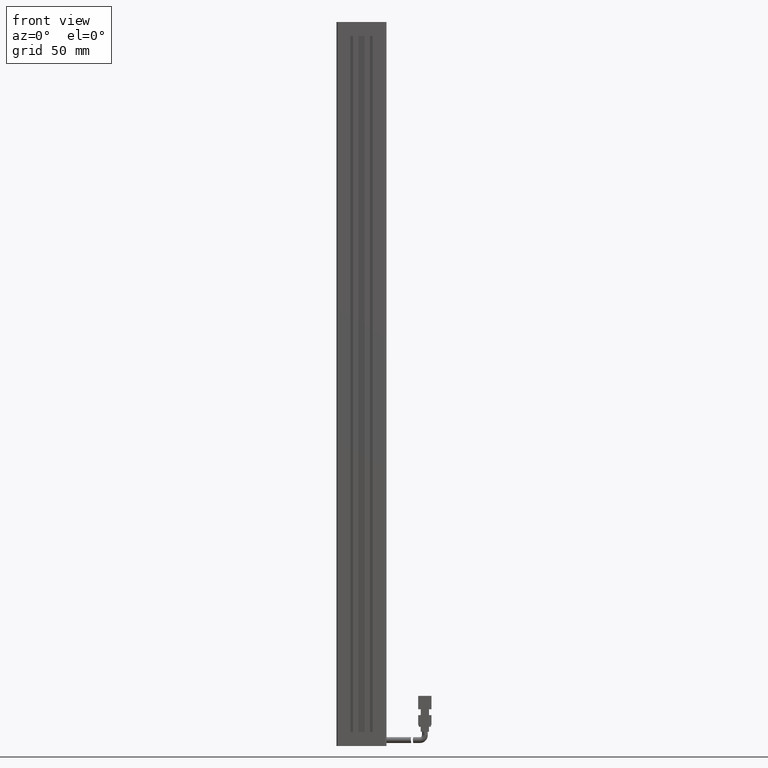
[diagram: clean part render]
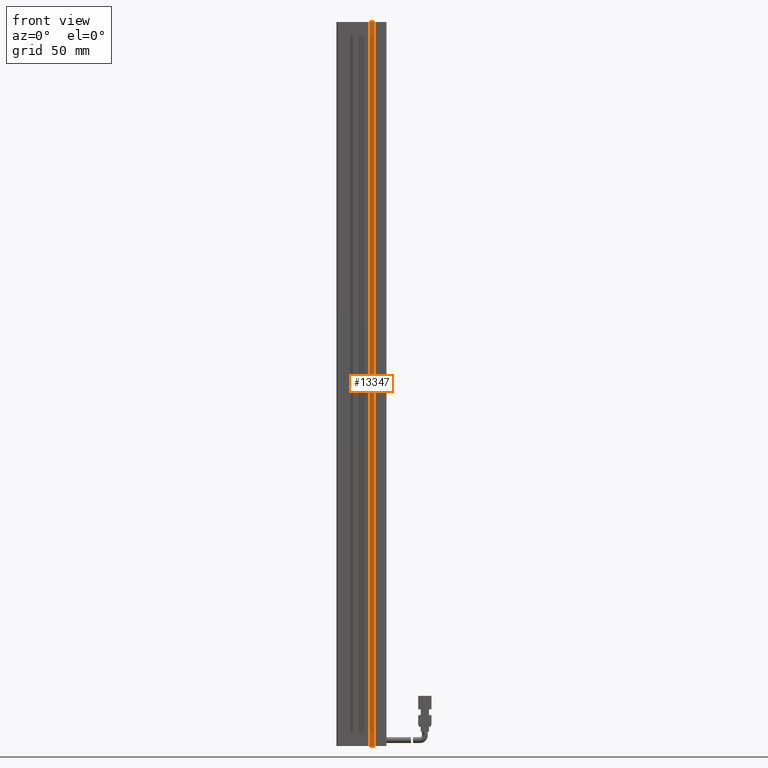
[diagram: same view with one face highlighted and labeled with its STEP entity id]
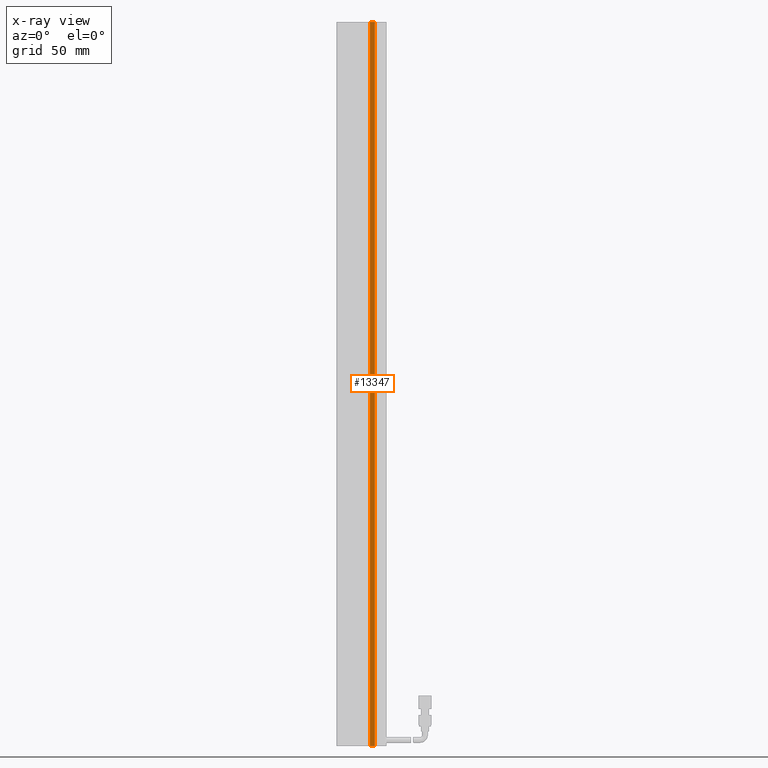
[diagram: x-ray of the same camera — body ghosted, the highlighted face saturated]
A machine part, front view. The second image highlights one B-rep face of the part: STEP entity #13347.
The next image is the same camera in x-ray: the body ghosted, the highlighted face saturated — about 0% of this face is hidden behind the body in this view.
In plain terms, the highlighted planar face has unit normal (0, -1, 0).
Its self-contained STEP definition (entity closure, byte-faithful):
#77 = CARTESIAN_POINT ( 'NONE',  ( 45.92537974683541800, 16.19594479660386800, 102.0000000000000000 ) ) ;
#1404 = DIRECTION ( 'NONE',  ( 1.000000000000000000, 0.0000000000000000000, 0.0000000000000000000 ) ) ;
#6037 = CARTESIAN_POINT ( 'NONE',  ( 40.92537974683542500, 16.19594479660386800, -332.0000000000000000 ) ) ;
#6555 = DIRECTION ( 'NONE',  ( 1.000000000000000000, 0.0000000000000000000, 0.0000000000000000000 ) ) ;
#7833 = FACE_OUTER_BOUND ( 'NONE', #33652, .T. ) ;
#9053 = DIRECTION ( 'NONE',  ( -0.0000000000000000000, -0.0000000000000000000, -1.000000000000000000 ) ) ;
#9618 = VECTOR ( 'NONE', #6555, 1000.000000000000000 ) ;
#11491 = CARTESIAN_POINT ( 'NONE',  ( 48.92537974683541800, 16.19594479660386800, 102.0000000000000000 ) ) ;
#13347 = ADVANCED_FACE ( 'NONE', ( #7833 ), #74913, .T. ) ;
#14682 = ORIENTED_EDGE ( 'NONE', *, *, #73661, .T. ) ;
#19538 = VECTOR ( 'NONE', #1404, 1000.000000000000000 ) ;
#19743 = CARTESIAN_POINT ( 'NONE',  ( 40.92537974683542500, 16.19594479660386800, 102.0000000000000000 ) ) ;
#21316 = VECTOR ( 'NONE', #42979, 1000.000000000000000 ) ;
#23785 = VERTEX_POINT ( 'NONE', #43237 ) ;
#25262 = CARTESIAN_POINT ( 'NONE',  ( 48.92537974683541800, 16.19594479660386800, -332.0000000000000000 ) ) ;
#25940 = DIRECTION ( 'NONE',  ( 0.0000000000000000000, -0.0000000000000000000, -1.000000000000000000 ) ) ;
#30108 = EDGE_CURVE ( 'NONE', #38813, #54555, #69453, .T. ) ;
#30932 = EDGE_CURVE ( 'NONE', #23785, #58046, #68441, .T. ) ;
#33652 = EDGE_LOOP ( 'NONE', ( #64840, #36575, #14682, #74824 ) ) ;
#34813 = VECTOR ( 'NONE', #9053, 1000.000000000000000 ) ;
#36575 = ORIENTED_EDGE ( 'NONE', *, *, #30932, .T. ) ;
#38088 = CARTESIAN_POINT ( 'NONE',  ( 45.92537974683541800, 16.19594479660386800, -332.0000000000000000 ) ) ;
#38813 = VERTEX_POINT ( 'NONE', #11491 ) ;
#42979 = DIRECTION ( 'NONE',  ( 0.0000000000000000000, -0.0000000000000000000, -1.000000000000000000 ) ) ;
#43237 = CARTESIAN_POINT ( 'NONE',  ( 45.92537974683541800, 16.19594479660386800, 102.0000000000000000 ) ) ;
#54555 = VERTEX_POINT ( 'NONE', #25262 ) ;
#56488 = CARTESIAN_POINT ( 'NONE',  ( 40.92537974683542500, 16.19594479660386800, 102.0000000000000000 ) ) ;
#58046 = VERTEX_POINT ( 'NONE', #38088 ) ;
#58623 = LINE ( 'NONE', #6037, #9618 ) ;
#62768 = DIRECTION ( 'NONE',  ( 0.0000000000000000000, -1.000000000000000000, 0.0000000000000000000 ) ) ;
#63218 = EDGE_CURVE ( 'NONE', #23785, #38813, #68618, .T. ) ;
#64840 = ORIENTED_EDGE ( 'NONE', *, *, #63218, .F. ) ;
#68441 = LINE ( 'NONE', #77, #21316 ) ;
#68618 = LINE ( 'NONE', #56488, #19538 ) ;
#69453 = LINE ( 'NONE', #76515, #34813 ) ;
#73661 = EDGE_CURVE ( 'NONE', #58046, #54555, #58623, .T. ) ;
#74824 = ORIENTED_EDGE ( 'NONE', *, *, #30108, .F. ) ;
#74913 = PLANE ( 'NONE',  #79155 ) ;
#76515 = CARTESIAN_POINT ( 'NONE',  ( 48.92537974683541800, 16.19594479660386800, 102.0000000000000000 ) ) ;
#79155 = AXIS2_PLACEMENT_3D ( 'NONE', #19743, #62768, #25940 ) ;